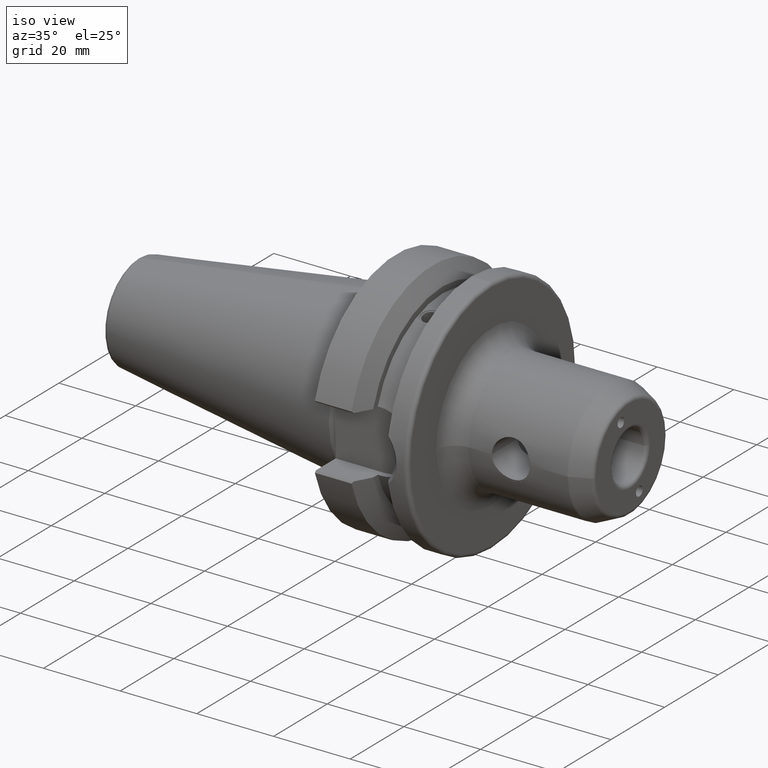
[diagram: clean part render]
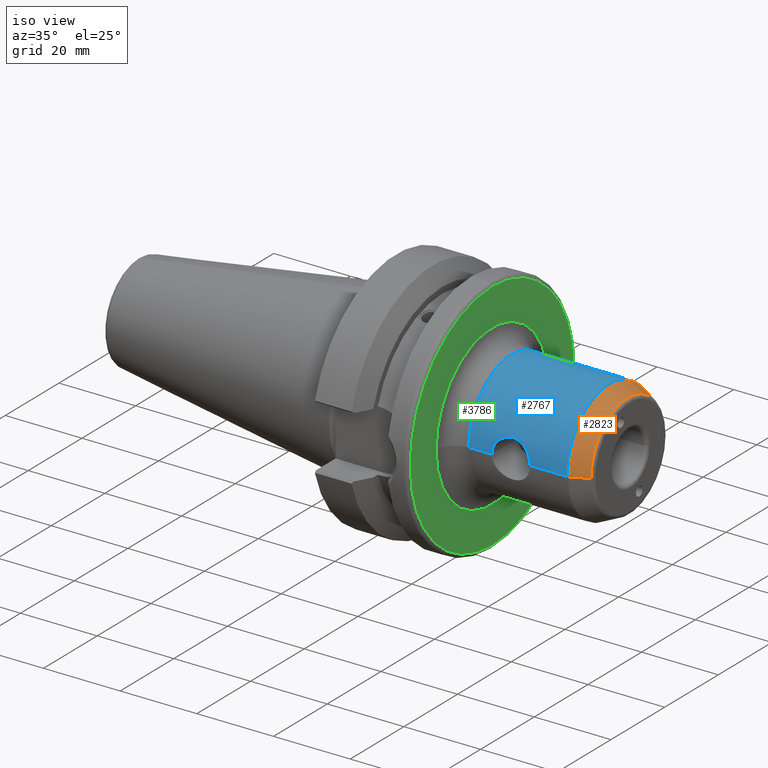
[diagram: same view with three faces highlighted in distinct colors, each labeled with its STEP entity id]
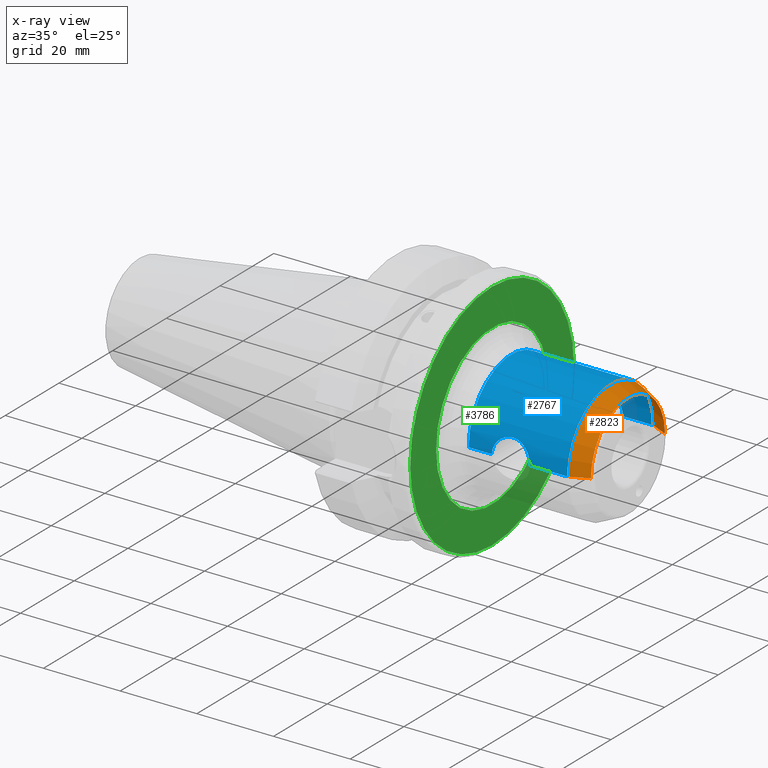
[diagram: x-ray of the same camera — body ghosted, the three highlighted faces saturated]
A machine part, iso view with three faces highlighted in distinct colors.
The next image is the same camera in x-ray (body ghosted, the three faces saturated) — at least one of them is partly hidden behind the body in this view.
Their STEP definitions:

[orange] entity #2823 — the highlighted conical surface has half-angle 25 deg.
#471=CARTESIAN_POINT('',(5.810771966289E1,0.E0,0.E0));
#472=DIRECTION('',(-1.E0,0.E0,0.E0));
#473=DIRECTION('',(0.E0,-1.E0,0.E0));
#474=AXIS2_PLACEMENT_3D('',#471,#472,#473);
#491=DIRECTION('',(-9.063077870366E-1,-4.226182617408E-1,0.E0));
#492=VECTOR('',#491,4.760963836537E0);
#493=CARTESIAN_POINT('',(6.242261826174E1,-1.376923752623E1,0.E0));
#494=LINE('',#493,#492);
#500=DIRECTION('',(-9.063077870366E-1,4.226182617408E-1,0.E0));
#501=VECTOR('',#500,4.760963836537E0);
#502=CARTESIAN_POINT('',(6.242261826174E1,1.376923752623E1,0.E0));
#503=LINE('',#502,#501);
#504=CARTESIAN_POINT('',(6.242261826174E1,0.E0,0.E0));
#505=DIRECTION('',(-1.E0,0.E0,0.E0));
#506=DIRECTION('',(0.E0,-1.E0,0.E0));
#507=AXIS2_PLACEMENT_3D('',#504,#505,#506);
#2172=CARTESIAN_POINT('',(6.242261826174E1,-1.376923752623E1,0.E0));
#2174=VERTEX_POINT('',#2172);
#2175=CARTESIAN_POINT('',(5.810771966289E1,-1.578130778704E1,0.E0));
#2176=VERTEX_POINT('',#2175);
#2188=CARTESIAN_POINT('',(6.242261826174E1,1.376923752623E1,0.E0));
#2190=VERTEX_POINT('',#2188);
#2191=CARTESIAN_POINT('',(5.810771966289E1,1.578130778704E1,0.E0));
#2192=VERTEX_POINT('',#2191);
#2811=CARTESIAN_POINT('',(6.026516896231E1,0.E0,0.E0));
#2812=DIRECTION('',(-1.E0,0.E0,0.E0));
#2813=DIRECTION('',(0.E0,-1.E0,0.E0));
#2814=AXIS2_PLACEMENT_3D('',#2811,#2812,#2813);
#2815=CONICAL_SURFACE('',#2814,1.477527265663E1,2.5E1);
#2816=ORIENTED_EDGE('',*,*,#2801,.T.);
#2817=ORIENTED_EDGE('',*,*,#2778,.T.);
#2818=ORIENTED_EDGE('',*,*,#2805,.F.);
#2820=ORIENTED_EDGE('',*,*,#2819,.F.);
#2821=EDGE_LOOP('',(#2816,#2817,#2818,#2820));
#2822=FACE_OUTER_BOUND('',#2821,.F.);
#2823=ADVANCED_FACE('',(#2822),#2815,.T.);
#475=CIRCLE('',#474,1.578130778704E1);
#508=CIRCLE('',#507,1.376923752623E1);
#2778=EDGE_CURVE('',#2176,#2192,#475,.T.);
#2801=EDGE_CURVE('',#2174,#2176,#494,.T.);
#2805=EDGE_CURVE('',#2190,#2192,#503,.T.);
#2819=EDGE_CURVE('',#2174,#2190,#508,.T.);

[blue] entity #2767 — the highlighted cylindrical surface (partial cylindrical patch) has radius 15.875 mm, axis along (-1, 0, 0).
#386=DIRECTION('',(-1.E0,0.E0,0.E0));
#387=VECTOR('',#386,3.960113637281E0);
#388=CARTESIAN_POINT('',(3.596011363728E1,1.5875E1,0.E0));
#389=LINE('',#388,#387);
#390=DIRECTION('',(-1.E0,0.E0,0.E0));
#391=VECTOR('',#390,6.0394E0);
#392=CARTESIAN_POINT('',(3.80394E1,-1.5875E1,0.E0));
#393=LINE('',#392,#391);
#411=DIRECTION('',(-1.E0,0.E0,0.E0));
#412=VECTOR('',#411,9.724501401147E0);
#413=CARTESIAN_POINT('',(5.768510140115E1,-1.5875E1,0.E0));
#414=LINE('',#413,#412);
#420=DIRECTION('',(-1.E0,0.E0,0.E0));
#421=VECTOR('',#420,7.645215038427E0);
#422=CARTESIAN_POINT('',(5.768510140115E1,1.5875E1,0.E0));
#423=LINE('',#422,#421);
#424=CARTESIAN_POINT('',(5.003988636272E1,1.5875E1,0.E0));
#425=CARTESIAN_POINT('',(5.003988636272E1,1.5875E1,3.251212084882E-1));
#426=CARTESIAN_POINT('',(4.998466058821E1,1.585512101533E1,9.606852939453E-1));
#427=CARTESIAN_POINT('',(4.974962041243E1,1.577254621115E1,1.871996676552E0));
#428=CARTESIAN_POINT('',(4.937688315745E1,1.564722548235E1,2.723414387640E0));
#429=CARTESIAN_POINT('',(4.886052389665E1,1.548574497768E1,3.521360349759E0));
#430=CARTESIAN_POINT('',(4.824491266194E1,1.531043620172E1,4.215731992292E0));
#431=CARTESIAN_POINT('',(4.743777933628E1,1.510933952067E1,4.885442252713E0));
#432=CARTESIAN_POINT('',(4.649710968877E1,1.491824320370E1,5.435514363616E0));
#433=CARTESIAN_POINT('',(4.550393123545E1,1.476633718100E1,5.831734260570E0));
#434=CARTESIAN_POINT('',(4.450359269018E1,1.466468460544E1,6.080705278018E0));
#435=CARTESIAN_POINT('',(4.348933448353E1,1.461178384217E1,6.205778496445E0));
#436=CARTESIAN_POINT('',(4.230759845167E1,1.461384607096E1,6.201032399377E0));
#437=CARTESIAN_POINT('',(4.098353614236E1,1.470422931804E1,5.986636213880E0));
#438=CARTESIAN_POINT('',(3.973423028851E1,1.487479454699E1,5.555237E0));
#439=CARTESIAN_POINT('',(3.863957585435E1,1.509043963969E1,4.946169147091E0));
#440=CARTESIAN_POINT('',(3.776892697355E1,1.530632204071E1,4.232882360094E0));
#441=CARTESIAN_POINT('',(3.713005390591E1,1.548849916006E1,3.510220031494E0));
#442=CARTESIAN_POINT('',(3.661897295627E1,1.564864088709E1,2.714037112476E0));
#443=CARTESIAN_POINT('',(3.625144102741E1,1.577218483457E1,1.874167490262E0));
#444=CARTESIAN_POINT('',(3.601539947541E1,1.585509575261E1,9.618480664060E-1));
#445=CARTESIAN_POINT('',(3.596011363728E1,1.5875E1,3.259401401675E-1));
#446=CARTESIAN_POINT('',(3.596011363728E1,1.5875E1,0.E0));
#448=CARTESIAN_POINT('',(5.768510140115E1,0.E0,0.E0));
#449=DIRECTION('',(-1.E0,0.E0,0.E0));
#450=DIRECTION('',(0.E0,-1.E0,0.E0));
#451=AXIS2_PLACEMENT_3D('',#448,#449,#450);
#453=CARTESIAN_POINT('',(3.80394E1,-1.5875E1,0.E0));
#454=CARTESIAN_POINT('',(3.80394E1,-1.5875E1,3.949403138229E-1));
#455=CARTESIAN_POINT('',(3.812895889390E1,-1.584659866051E1,1.170221986612E0));
#456=CARTESIAN_POINT('',(3.856810043374E1,-1.571461737116E1,2.341890416798E0));
#457=CARTESIAN_POINT('',(3.926888784684E1,-1.552839953150E1,3.340835500469E0));
#458=CARTESIAN_POINT('',(4.017032387744E1,-1.533245372189E1,4.135438201432E0));
#459=CARTESIAN_POINT('',(4.128554433094E1,-1.516206291810E1,4.710724988148E0));
#460=CARTESIAN_POINT('',(4.247741840604E1,-1.507387360460E1,4.979239411517E0));
#461=CARTESIAN_POINT('',(4.363798831089E1,-1.507817703172E1,4.966967260764E0));
#462=CARTESIAN_POINT('',(4.479709259193E1,-1.517462654022E1,4.669497996173E0));
#463=CARTESIAN_POINT('',(4.571546535330E1,-1.531569118065E1,4.189225331075E0));
#464=CARTESIAN_POINT('',(4.647173246209E1,-1.546957072017E1,3.587053840914E0));
#465=CARTESIAN_POINT('',(4.710564816067E1,-1.562581733542E1,2.841259571283E0));
#466=CARTESIAN_POINT('',(4.759517388687E1,-1.576309848841E1,1.963472425543E0));
#467=CARTESIAN_POINT('',(4.790344026908E1,-1.585691911946E1,9.526667725303E-1));
#468=CARTESIAN_POINT('',(4.79606E1,-1.5875E1,3.176299600537E-1));
#469=CARTESIAN_POINT('',(4.79606E1,-1.5875E1,0.E0));
#1578=CARTESIAN_POINT('',(3.2E1,0.E0,0.E0));
#1579=DIRECTION('',(-1.E0,0.E0,0.E0));
#1580=DIRECTION('',(0.E0,-1.E0,0.E0));
#1581=AXIS2_PLACEMENT_3D('',#1578,#1579,#1580);
#2177=CARTESIAN_POINT('',(5.768510140115E1,-1.5875E1,0.E0));
#2178=VERTEX_POINT('',#2177);
#2193=CARTESIAN_POINT('',(5.768510140115E1,1.5875E1,0.E0));
#2194=VERTEX_POINT('',#2193);
#2203=CARTESIAN_POINT('',(3.2E1,-1.5875E1,0.E0));
#2204=CARTESIAN_POINT('',(3.2E1,1.5875E1,0.E0));
#2205=VERTEX_POINT('',#2203);
#2206=VERTEX_POINT('',#2204);
#2219=VERTEX_POINT('',#453);
#2220=VERTEX_POINT('',#469);
#2247=VERTEX_POINT('',#424);
#2248=VERTEX_POINT('',#446);
#2749=CARTESIAN_POINT('',(0.E0,0.E0,0.E0));
#2750=DIRECTION('',(-1.E0,0.E0,0.E0));
#2751=DIRECTION('',(0.E0,-1.E0,0.E0));
#2752=AXIS2_PLACEMENT_3D('',#2749,#2750,#2751);
#2753=CYLINDRICAL_SURFACE('',#2752,1.5875E1);
#2754=ORIENTED_EDGE('',*,*,#2744,.F.);
#2755=ORIENTED_EDGE('',*,*,#2733,.F.);
#2757=ORIENTED_EDGE('',*,*,#2756,.F.);
#2758=ORIENTED_EDGE('',*,*,#2729,.T.);
#2760=ORIENTED_EDGE('',*,*,#2759,.F.);
#2761=ORIENTED_EDGE('',*,*,#2726,.T.);
#2763=ORIENTED_EDGE('',*,*,#2762,.T.);
#2764=ORIENTED_EDGE('',*,*,#2722,.F.);
#2765=EDGE_LOOP('',(#2754,#2755,#2757,#2758,#2760,#2761,#2763,#2764));
#2766=FACE_OUTER_BOUND('',#2765,.F.);
#2767=ADVANCED_FACE('',(#2766),#2753,.T.);
#447=B_SPLINE_CURVE_WITH_KNOTS('',3,(#424,#425,#426,#427,#428,#429,#430,#431,
#432,#433,#434,#435,#436,#437,#438,#439,#440,#441,#442,#443,#444,#445,#446),
.UNSPECIFIED.,.F.,.F.,(4,1,1,1,1,1,1,1,1,1,1,1,1,1,1,1,1,1,1,1,4),(0.E0,5.E-2,
1.E-1,1.5E-1,2.E-1,2.5E-1,3.E-1,3.5E-1,4.E-1,4.5E-1,5.E-1,5.5E-1,6.E-1,6.5E-1,
7.E-1,7.5E-1,8.E-1,8.5E-1,9.E-1,9.5E-1,1.E0),.UNSPECIFIED.);
#452=CIRCLE('',#451,1.5875E1);
#470=B_SPLINE_CURVE_WITH_KNOTS('',3,(#453,#454,#455,#456,#457,#458,#459,#460,
#461,#462,#463,#464,#465,#466,#467,#468,#469),.UNSPECIFIED.,.F.,.F.,(4,1,1,1,1,
1,1,1,1,1,1,1,1,1,4),(0.E0,7.142857142857E-2,1.428571428571E-1,
2.142857142857E-1,2.857142857143E-1,3.571428571429E-1,4.285714285714E-1,5.E-1,
5.714285714286E-1,6.428571428571E-1,7.142857142857E-1,7.857142857143E-1,
8.571428571429E-1,9.285714285714E-1,1.E0),.UNSPECIFIED.);
#1582=CIRCLE('',#1581,1.5875E1);
#2722=EDGE_CURVE('',#2248,#2206,#389,.T.);
#2726=EDGE_CURVE('',#2219,#2205,#393,.T.);
#2729=EDGE_CURVE('',#2178,#2220,#414,.T.);
#2733=EDGE_CURVE('',#2194,#2247,#423,.T.);
#2744=EDGE_CURVE('',#2247,#2248,#447,.T.);
#2756=EDGE_CURVE('',#2178,#2194,#452,.T.);
#2759=EDGE_CURVE('',#2219,#2220,#470,.T.);
#2762=EDGE_CURVE('',#2205,#2206,#1582,.T.);

[green] entity #3786 — the highlighted planar face has unit normal (-1, 0, 0).
#1558=CARTESIAN_POINT('',(2.7E1,0.E0,0.E0));
#1559=DIRECTION('',(-1.E0,0.E0,0.E0));
#1560=DIRECTION('',(0.E0,0.E0,-1.E0));
#1561=AXIS2_PLACEMENT_3D('',#1558,#1559,#1560);
#1563=CARTESIAN_POINT('',(2.7E1,0.E0,0.E0));
#1564=DIRECTION('',(-1.E0,0.E0,0.E0));
#1565=DIRECTION('',(0.E0,0.E0,1.E0));
#1566=AXIS2_PLACEMENT_3D('',#1563,#1564,#1565);
#1568=CARTESIAN_POINT('',(2.7E1,0.E0,0.E0));
#1569=DIRECTION('',(-1.E0,0.E0,0.E0));
#1570=DIRECTION('',(0.E0,-1.E0,0.E0));
#1571=AXIS2_PLACEMENT_3D('',#1568,#1569,#1570);
#1573=CARTESIAN_POINT('',(2.7E1,0.E0,0.E0));
#1574=DIRECTION('',(-1.E0,0.E0,0.E0));
#1575=DIRECTION('',(0.E0,1.E0,0.E0));
#1576=AXIS2_PLACEMENT_3D('',#1573,#1574,#1575);
#1978=CARTESIAN_POINT('',(2.7E1,0.E0,-3.05E1));
#1979=CARTESIAN_POINT('',(2.7E1,0.E0,3.05E1));
#1980=VERTEX_POINT('',#1978);
#1981=VERTEX_POINT('',#1979);
#2207=CARTESIAN_POINT('',(2.7E1,-2.0875E1,0.E0));
#2208=CARTESIAN_POINT('',(2.7E1,2.0875E1,0.E0));
#2209=VERTEX_POINT('',#2207);
#2210=VERTEX_POINT('',#2208);
#3771=CARTESIAN_POINT('',(2.7E1,0.E0,0.E0));
#3772=DIRECTION('',(-1.E0,0.E0,0.E0));
#3773=DIRECTION('',(0.E0,0.E0,-1.E0));
#3774=AXIS2_PLACEMENT_3D('',#3771,#3772,#3773);
#3775=PLANE('',#3774);
#3776=ORIENTED_EDGE('',*,*,#3765,.T.);
#3777=ORIENTED_EDGE('',*,*,#3751,.T.);
#3778=EDGE_LOOP('',(#3776,#3777));
#3779=FACE_OUTER_BOUND('',#3778,.F.);
#3781=ORIENTED_EDGE('',*,*,#3780,.F.);
#3783=ORIENTED_EDGE('',*,*,#3782,.F.);
#3784=EDGE_LOOP('',(#3781,#3783));
#3785=FACE_BOUND('',#3784,.F.);
#3786=ADVANCED_FACE('',(#3779,#3785),#3775,.F.);
#1562=CIRCLE('',#1561,3.05E1);
#1567=CIRCLE('',#1566,3.05E1);
#1572=CIRCLE('',#1571,2.0875E1);
#1577=CIRCLE('',#1576,2.0875E1);
#3751=EDGE_CURVE('',#1981,#1980,#1567,.T.);
#3765=EDGE_CURVE('',#1980,#1981,#1562,.T.);
#3780=EDGE_CURVE('',#2209,#2210,#1572,.T.);
#3782=EDGE_CURVE('',#2210,#2209,#1577,.T.);